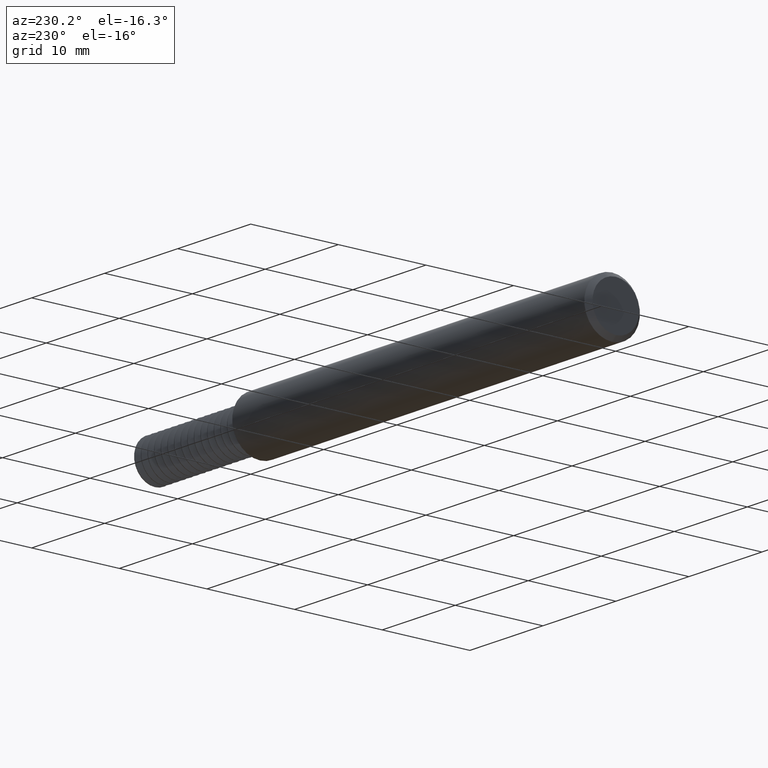
[diagram: clean part render]
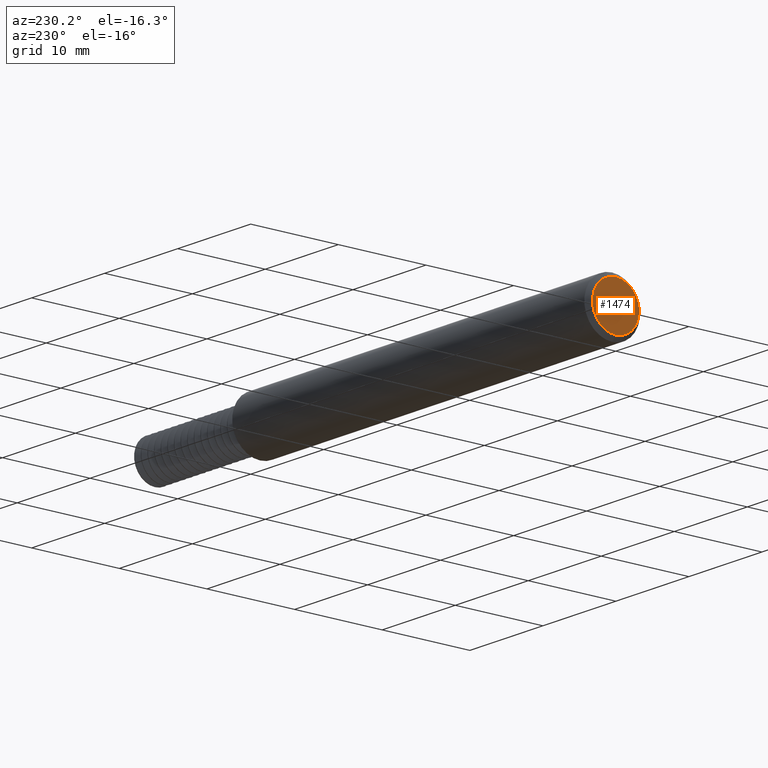
[diagram: same view with one face highlighted and labeled with its STEP entity id]
A machine part, auxiliary view. The second image highlights one B-rep face of the part: STEP entity #1474.
In plain terms, the highlighted planar face has unit normal (1, 0, 0).
Its self-contained STEP definition (entity closure, byte-faithful):
#35 = ORIENTED_EDGE ( 'NONE', *, *, #986, .T. ) ;
#203 = DIRECTION ( 'NONE',  ( -1.000000000000000000, -0.000000000000000000, -0.000000000000000000 ) ) ;
#570 = CIRCLE ( 'NONE', #2172, 0.1048499999999998322 ) ;
#599 = EDGE_LOOP ( 'NONE', ( #35, #1158 ) ) ;
#838 = PLANE ( 'NONE',  #2437 ) ;
#894 = CIRCLE ( 'NONE', #2840, 0.1048499999999998322 ) ;
#986 = EDGE_CURVE ( 'NONE', #2809, #2690, #894, .T. ) ;
#1158 = ORIENTED_EDGE ( 'NONE', *, *, #1600, .T. ) ;
#1328 = FACE_OUTER_BOUND ( 'NONE', #599, .T. ) ;
#1432 = DIRECTION ( 'NONE',  ( -1.000000000000000000, -0.000000000000000000, -0.000000000000000000 ) ) ;
#1474 = ADVANCED_FACE ( 'NONE', ( #1328 ), #838, .F. ) ;
#1591 = CARTESIAN_POINT ( 'NONE',  ( 0.000000000000000000, 0.000000000000000000, 0.000000000000000000 ) ) ;
#1600 = EDGE_CURVE ( 'NONE', #2690, #2809, #570, .T. ) ;
#2151 = DIRECTION ( 'NONE',  ( 1.000000000000000000, 0.000000000000000000, 0.000000000000000000 ) ) ;
#2172 = AXIS2_PLACEMENT_3D ( 'NONE', #2754, #1432, #2998 ) ;
#2321 = DIRECTION ( 'NONE',  ( 0.000000000000000000, 0.000000000000000000, -1.000000000000000000 ) ) ;
#2437 = AXIS2_PLACEMENT_3D ( 'NONE', #1591, #2151, #2896 ) ;
#2586 = CARTESIAN_POINT ( 'NONE',  ( 0.000000000000000000, 1.406506848820734139E-17, 0.1048499999999998322 ) ) ;
#2690 = VERTEX_POINT ( 'NONE', #2586 ) ;
#2707 = CARTESIAN_POINT ( 'NONE',  ( 0.000000000000000000, 0.000000000000000000, -0.1048499999999998322 ) ) ;
#2754 = CARTESIAN_POINT ( 'NONE',  ( 0.000000000000000000, 0.000000000000000000, 0.000000000000000000 ) ) ;
#2809 = VERTEX_POINT ( 'NONE', #2707 ) ;
#2840 = AXIS2_PLACEMENT_3D ( 'NONE', #3142, #203, #2321 ) ;
#2896 = DIRECTION ( 'NONE',  ( 0.000000000000000000, 0.000000000000000000, -1.000000000000000000 ) ) ;
#2998 = DIRECTION ( 'NONE',  ( 0.000000000000000000, 0.000000000000000000, -1.000000000000000000 ) ) ;
#3142 = CARTESIAN_POINT ( 'NONE',  ( 0.000000000000000000, 0.000000000000000000, 0.000000000000000000 ) ) ;